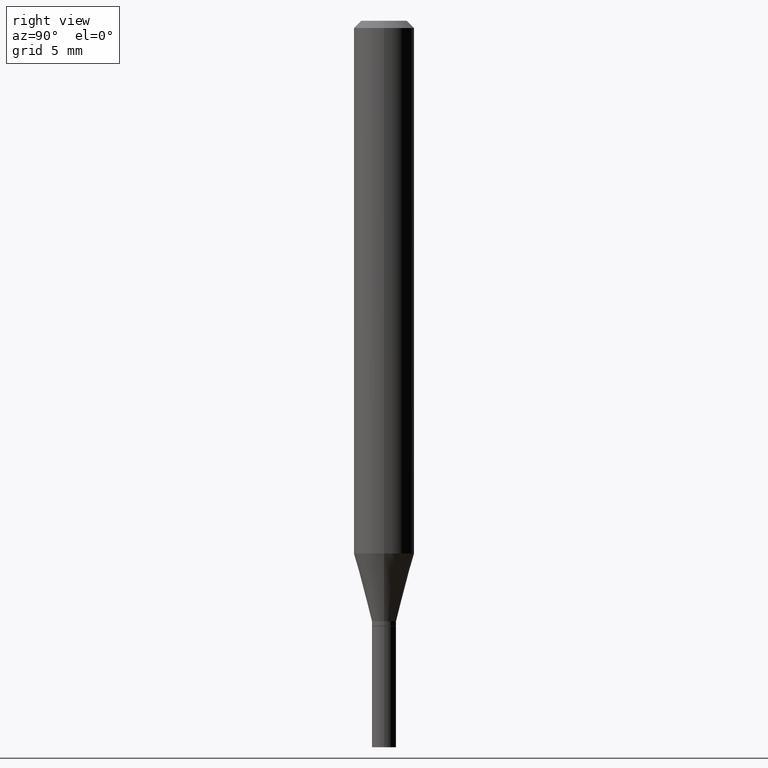
[diagram: clean part render]
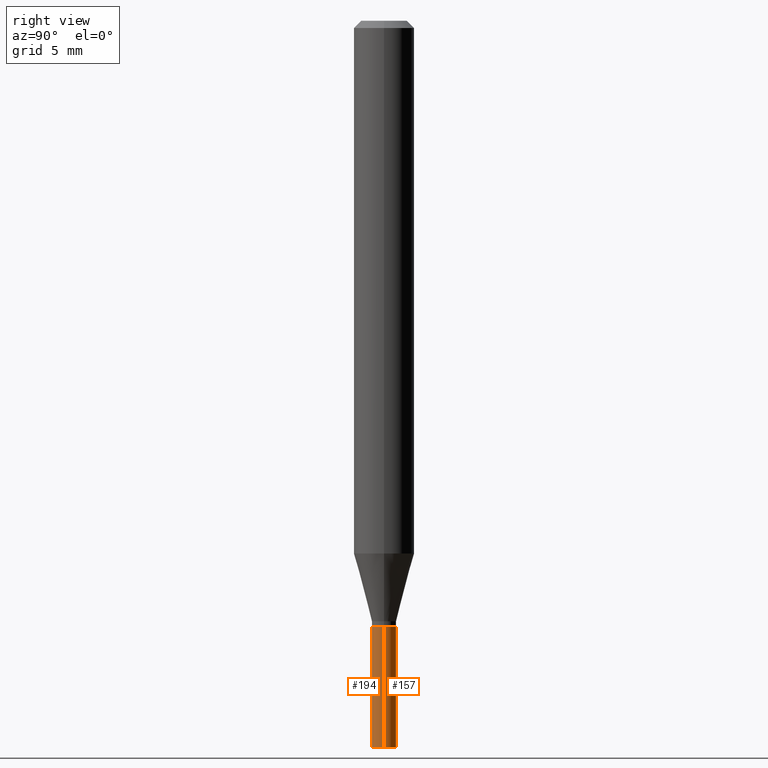
[diagram: same view with one multi-face feature highlighted, each face labeled with its STEP entity id]
A machine part, right view. The highlighted faces form ONE feature: a constant-radius fillet chain: 2 tangent blend faces with common blend radius 0.635 mm. The faces share edges in the B-rep.
Their STEP definitions:
[1] entity #157 (Cylinder):
#35 = AXIS2_PLACEMENT_3D ( 'NONE', #199, #376, #248 ) ;
#41 = DIRECTION ( 'NONE',  ( -2.445468806185136877E-29, 3.491481338843145188E-15, 1.000000000000000000 ) ) ;
#64 = LINE ( 'NONE', #449, #136 ) ;
#88 = DIRECTION ( 'NONE',  ( 1.000000000000000000, -6.982962677686254878E-15, 0.000000000000000000 ) ) ;
#96 = EDGE_CURVE ( 'NONE', #206, #394, #230, .T. ) ;
#132 = EDGE_CURVE ( 'NONE', #394, #410, #169, .T. ) ;
#136 = VECTOR ( 'NONE', #271, 39.37007874015748143 ) ;
#157 = ADVANCED_FACE ( 'NONE', ( #414 ), #305, .T. ) ;
#158 = DIRECTION ( 'NONE',  ( -2.445468806185136597E-29, 3.491481338843145583E-15, 1.000000000000000000 ) ) ;
#167 = EDGE_LOOP ( 'NONE', ( #458, #443, #210, #232 ) ) ;
#169 = CIRCLE ( 'NONE', #35, 0.02500000000000000139 ) ;
#180 = AXIS2_PLACEMENT_3D ( 'NONE', #270, #238, #88 ) ;
#195 = CARTESIAN_POINT ( 'NONE',  ( 0.000000000000000000, 0.000000000000000000, 0.000000000000000000 ) ) ;
#199 = CARTESIAN_POINT ( 'NONE',  ( 3.056836007731421306E-29, -4.364351673553932471E-15, -1.250000000000000000 ) ) ;
#205 = CARTESIAN_POINT ( 'NONE',  ( 0.02500000000000000139, -5.411796075206874844E-15, -1.500000000000000222 ) ) ;
#206 = VERTEX_POINT ( 'NONE', #205 ) ;
#210 = ORIENTED_EDGE ( 'NONE', *, *, #132, .F. ) ;
#230 = LINE ( 'NONE', #299, #462 ) ;
#232 = ORIENTED_EDGE ( 'NONE', *, *, #96, .F. ) ;
#233 = AXIS2_PLACEMENT_3D ( 'NONE', #195, #158, #275 ) ;
#238 = DIRECTION ( 'NONE',  ( -2.445468806185136597E-29, 3.491481338843145583E-15, 1.000000000000000000 ) ) ;
#246 = CARTESIAN_POINT ( 'NONE',  ( -0.02500000000000000139, -4.623151156969299725E-15, -1.250000000000000000 ) ) ;
#248 = DIRECTION ( 'NONE',  ( 1.000000000000000000, -6.982962677686274599E-15, 0.000000000000000000 ) ) ;
#256 = EDGE_CURVE ( 'NONE', #206, #259, #386, .T. ) ;
#259 = VERTEX_POINT ( 'NONE', #378 ) ;
#270 = CARTESIAN_POINT ( 'NONE',  ( 3.668203209277704895E-29, -5.237222008264718177E-15, -1.500000000000000222 ) ) ;
#271 = DIRECTION ( 'NONE',  ( -2.445468806185136877E-29, 3.491481338843145188E-15, 1.000000000000000000 ) ) ;
#275 = DIRECTION ( 'NONE',  ( 1.000000000000000000, -6.982962677686267499E-15, 4.876176775795936353E-29 ) ) ;
#299 = CARTESIAN_POINT ( 'NONE',  ( 0.02500000000000000139, -1.745740669421566924E-16, 1.219044193948984123E-30 ) ) ;
#305 = CYLINDRICAL_SURFACE ( 'NONE', #233, 0.02500000000000000139 ) ;
#376 = DIRECTION ( 'NONE',  ( -2.445468806185136597E-29, 3.491481338843145583E-15, 1.000000000000000000 ) ) ;
#378 = CARTESIAN_POINT ( 'NONE',  ( -0.02500000000000000139, -4.623151156969299725E-15, -1.500000000000000222 ) ) ;
#386 = CIRCLE ( 'NONE', #180, 0.02500000000000000139 ) ;
#394 = VERTEX_POINT ( 'NONE', #417 ) ;
#410 = VERTEX_POINT ( 'NONE', #246 ) ;
#411 = EDGE_CURVE ( 'NONE', #259, #410, #64, .T. ) ;
#414 = FACE_OUTER_BOUND ( 'NONE', #167, .T. ) ;
#417 = CARTESIAN_POINT ( 'NONE',  ( 0.02500000000000000139, -4.538925740496089139E-15, -1.250000000000000000 ) ) ;
#443 = ORIENTED_EDGE ( 'NONE', *, *, #411, .T. ) ;
#449 = CARTESIAN_POINT ( 'NONE',  ( -0.02500000000000000139, 1.776356839400250563E-16, -1.229733772563726656E-30 ) ) ;
#458 = ORIENTED_EDGE ( 'NONE', *, *, #256, .T. ) ;
#462 = VECTOR ( 'NONE', #41, 39.37007874015748143 ) ;
[2] entity #194 (Cylinder):
#25 = DIRECTION ( 'NONE',  ( 1.000000000000000000, -6.982962677686274599E-15, 0.000000000000000000 ) ) ;
#41 = DIRECTION ( 'NONE',  ( -2.445468806185136877E-29, 3.491481338843145188E-15, 1.000000000000000000 ) ) ;
#52 = DIRECTION ( 'NONE',  ( -2.445468806185136597E-29, 3.491481338843145583E-15, 1.000000000000000000 ) ) ;
#57 = EDGE_LOOP ( 'NONE', ( #420, #152, #335, #272 ) ) ;
#64 = LINE ( 'NONE', #449, #136 ) ;
#77 = DIRECTION ( 'NONE',  ( 1.000000000000000000, -6.982962677686254878E-15, 0.000000000000000000 ) ) ;
#96 = EDGE_CURVE ( 'NONE', #206, #394, #230, .T. ) ;
#124 = AXIS2_PLACEMENT_3D ( 'NONE', #239, #355, #25 ) ;
#136 = VECTOR ( 'NONE', #271, 39.37007874015748143 ) ;
#148 = AXIS2_PLACEMENT_3D ( 'NONE', #341, #52, #197 ) ;
#152 = ORIENTED_EDGE ( 'NONE', *, *, #459, .T. ) ;
#153 = CIRCLE ( 'NONE', #124, 0.02500000000000000139 ) ;
#165 = FACE_OUTER_BOUND ( 'NONE', #57, .T. ) ;
#194 = ADVANCED_FACE ( 'NONE', ( #165 ), #422, .T. ) ;
#197 = DIRECTION ( 'NONE',  ( 1.000000000000000000, -6.982962677686267499E-15, 4.876176775795936353E-29 ) ) ;
#205 = CARTESIAN_POINT ( 'NONE',  ( 0.02500000000000000139, -5.411796075206874844E-15, -1.500000000000000222 ) ) ;
#206 = VERTEX_POINT ( 'NONE', #205 ) ;
#230 = LINE ( 'NONE', #299, #462 ) ;
#239 = CARTESIAN_POINT ( 'NONE',  ( 3.056836007731421306E-29, -4.364351673553932471E-15, -1.250000000000000000 ) ) ;
#246 = CARTESIAN_POINT ( 'NONE',  ( -0.02500000000000000139, -4.623151156969299725E-15, -1.250000000000000000 ) ) ;
#259 = VERTEX_POINT ( 'NONE', #378 ) ;
#271 = DIRECTION ( 'NONE',  ( -2.445468806185136877E-29, 3.491481338843145188E-15, 1.000000000000000000 ) ) ;
#272 = ORIENTED_EDGE ( 'NONE', *, *, #404, .F. ) ;
#299 = CARTESIAN_POINT ( 'NONE',  ( 0.02500000000000000139, -1.745740669421566924E-16, 1.219044193948984123E-30 ) ) ;
#327 = CARTESIAN_POINT ( 'NONE',  ( 3.668203209277704895E-29, -5.237222008264718177E-15, -1.500000000000000222 ) ) ;
#331 = AXIS2_PLACEMENT_3D ( 'NONE', #327, #402, #77 ) ;
#335 = ORIENTED_EDGE ( 'NONE', *, *, #96, .T. ) ;
#341 = CARTESIAN_POINT ( 'NONE',  ( 0.000000000000000000, 0.000000000000000000, 0.000000000000000000 ) ) ;
#355 = DIRECTION ( 'NONE',  ( -2.445468806185136597E-29, 3.491481338843145583E-15, 1.000000000000000000 ) ) ;
#378 = CARTESIAN_POINT ( 'NONE',  ( -0.02500000000000000139, -4.623151156969299725E-15, -1.500000000000000222 ) ) ;
#394 = VERTEX_POINT ( 'NONE', #417 ) ;
#402 = DIRECTION ( 'NONE',  ( -2.445468806185136597E-29, 3.491481338843145583E-15, 1.000000000000000000 ) ) ;
#404 = EDGE_CURVE ( 'NONE', #410, #394, #153, .T. ) ;
#410 = VERTEX_POINT ( 'NONE', #246 ) ;
#411 = EDGE_CURVE ( 'NONE', #259, #410, #64, .T. ) ;
#417 = CARTESIAN_POINT ( 'NONE',  ( 0.02500000000000000139, -4.538925740496089139E-15, -1.250000000000000000 ) ) ;
#420 = ORIENTED_EDGE ( 'NONE', *, *, #411, .F. ) ;
#422 = CYLINDRICAL_SURFACE ( 'NONE', #148, 0.02500000000000000139 ) ;
#430 = CIRCLE ( 'NONE', #331, 0.02500000000000000139 ) ;
#449 = CARTESIAN_POINT ( 'NONE',  ( -0.02500000000000000139, 1.776356839400250563E-16, -1.229733772563726656E-30 ) ) ;
#459 = EDGE_CURVE ( 'NONE', #259, #206, #430, .T. ) ;
#462 = VECTOR ( 'NONE', #41, 39.37007874015748143 ) ;